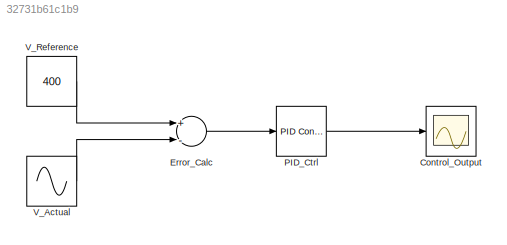
MODEL slx_32731b61c1b9
KIND model
CONFIG AbsTol = auto
CONFIG EnableMultiTasking = off
CONFIG FixedStep = 0.1
CONFIG MaxStep = auto
CONFIG MinStep = auto
CONFIG RelTol = 1e-3
CONFIG SampleTimeConstraint = Unconstrained
CONFIG SolverName = ode4
CONFIG StartTime = 0.0
CONFIG StopTime = 3600
BLOCK [Scope] Control_Output
  Floating = off
  NumInputPorts = 1
  Ports = [1]
BLOCK [Sum] Error_Calc
  Inputs = +-
  Ports = [2, 1]
BLOCK [Reference] PID_Ctrl  REF=slpidlib/PID Controller
  Ports = [1, 1]
  SourceBlock = slpidlib/PID Controller
  SourceProductBaseCode = SL
  SourceType = PID 1dof
BLOCK [Sin] V_Actual
  Amplitude = 5
  Bias = 400
  Frequency = 0.01
  Ports = [0, 1]
  SampleTime = 0
BLOCK [Constant] V_Reference
  Value = 400
LINE Error_Calc:1 -> PID_Ctrl:1
LINE PID_Ctrl:1 -> Control_Output:1
LINE V_Actual:1 -> Error_Calc:2
LINE V_Reference:1 -> Error_Calc:1
